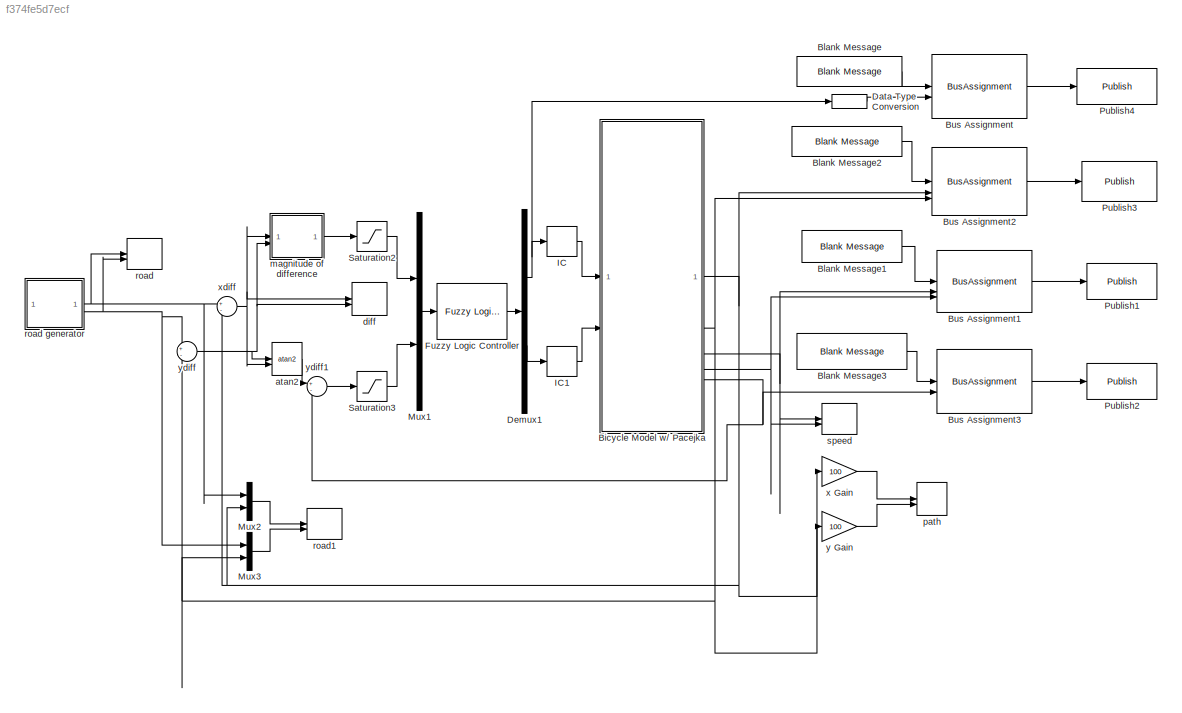
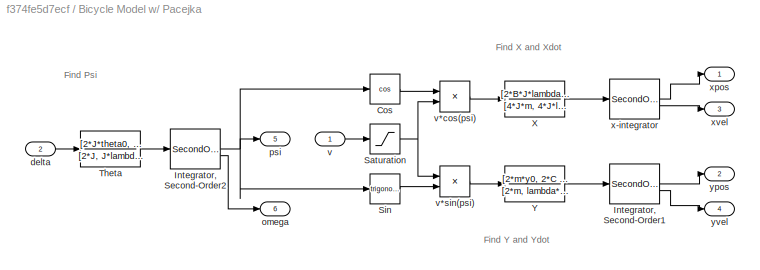
MODEL slx_f374fe5d7ecf
KIND model
CONFIG AbsTol = auto
CONFIG EnableMultiTasking = off
CONFIG FixedStep = auto
CONFIG MaxStep = auto
CONFIG MinStep = auto
CONFIG RelTol = 1e-3
CONFIG SampleTimeConstraint = Unconstrained
CONFIG SolverName = VariableStepAuto
CONFIG StartTime = 0.0
CONFIG StopTime = 10.0
WORKSPACE source: mxarray member
WORKSPACE B = 10
WORKSPACE C = 0.0002787
WORKSPACE Iz = 0
WORKSPACE J = 0.0186284035067
WORKSPACE L = 1
WORKSPACE X: Simulink.Parameter (value not decoded)
WORKSPACE c = 0.0002787
WORKSPACE g = 9.81
WORKSPACE lambda = 0.05
WORKSPACE lf = 0.5
WORKSPACE lr = 0.5
WORKSPACE m = 1000
WORKSPACE omega0 = 0
WORKSPACE r = 0.33
WORKSPACE theta = 1.57079632679
WORKSPACE theta0 = 1.57079632679
WORKSPACE v = 5
WORKSPACE vx0 = 5
WORKSPACE vy0 = 0
WORKSPACE x0 = 0
WORKSPACE y0 = 0
BLOCK [SubSystem] Bicycle Model w// Pacejka
BLOCK [Trigonometry] Bicycle Model w// Pacejka/Cos
  Operator = cos
BLOCK [SecondOrderIntegrator] Bicycle Model w// Pacejka/Integrator, Second-Order1
BLOCK [SecondOrderIntegrator] Bicycle Model w// Pacejka/Integrator, Second-Order2
BLOCK [Saturate] Bicycle Model w// Pacejka/Saturation
  LowerLimit = -30
  UpperLimit = 30
BLOCK [Trigonometry] Bicycle Model w// Pacejka/Sin
BLOCK [TransferFcn] Bicycle Model w// Pacejka/Theta
  Denominator = [2*J, J*lambda, 0, 0, 0]
  Numerator = [2*J*theta0, 2*J*omega0 + 2*C*L + J*lambda*theta0, J*lambda*omega0]
BLOCK [TransferFcn] Bicycle Model w// Pacejka/X
  ContinuousStateAttributes = 'X'
  Denominator = [4*J*m, 4*J*lambda*m, J*lambda^2*m, 0, 0, 0]
  Numerator = [2*B*J*lambda*omega0*r, J*lambda^2*m*vx0 + 4*B*C*L*r + 4*B*J*omega0*r + 2*B*J*lambda*r*theta0 - B*J*lambda^2*r*theta0, J*lambda^2*m*x0 + 4*B*J*r*theta0 + 4*J*lambda*m*vx0 - 4*B*J*lambda*r*theta0, 2*B*J*lambda + 4*J*m*vx0 - 4*B*J*r*theta0 + 4*J*lambda*m*x0, 4*B*J + 4*J*m*x0]
BLOCK [TransferFcn] Bicycle Model w// Pacejka/Y
  Denominator = [2*m, lambda*m, 0, 0, 0]
  Numerator = [2*m*y0, 2*C + 2*m*vy0 + lambda*m*y0, lambda*m*vy0]
BLOCK [Inport] Bicycle Model w// Pacejka/delta
  OutDataTypeStr = double
  Port = 2
BLOCK [Outport] Bicycle Model w// Pacejka/omega
  Port = 6
BLOCK [Outport] Bicycle Model w// Pacejka/psi
  Port = 5
BLOCK [Inport] Bicycle Model w// Pacejka/v
BLOCK [Product] Bicycle Model w// Pacejka/v*cos(psi)
BLOCK [Product] Bicycle Model w// Pacejka/v*sin(psi)
BLOCK [SecondOrderIntegrator] Bicycle Model w// Pacejka/x-integrator
BLOCK [Outport] Bicycle Model w// Pacejka/xpos
BLOCK [Outport] Bicycle Model w// Pacejka/xvel
  Port = 3
BLOCK [Outport] Bicycle Model w// Pacejka/ypos
  Port = 2
BLOCK [Outport] Bicycle Model w// Pacejka/yvel
  Port = 4
BLOCK [Reference] Blank Message  REF=ros2lib/Blank Message  (lib defined in slx_3c1549211f48)
  SourceBlock = ros2lib/Blank Message
  SourceType = ROS2 Blank Message
BLOCK [Reference] Blank Message1  REF=ros2lib/Blank Message  (lib defined in slx_3c1549211f48)
  SourceBlock = ros2lib/Blank Message
  SourceType = ROS2 Blank Message
BLOCK [Reference] Blank Message2  REF=ros2lib/Blank Message  (lib defined in slx_3c1549211f48)
  SourceBlock = ros2lib/Blank Message
  SourceType = ROS2 Blank Message
BLOCK [Reference] Blank Message3  REF=ros2lib/Blank Message  (lib defined in slx_3c1549211f48)
  SourceBlock = ros2lib/Blank Message
  SourceType = ROS2 Blank Message
BLOCK [BusAssignment] Bus Assignment
  AssignedSignals = linear.x
BLOCK [BusAssignment] Bus Assignment1
  AssignedSignals = linear.x,linear.y
BLOCK [BusAssignment] Bus Assignment2
  AssignedSignals = position.x,position.y
BLOCK [BusAssignment] Bus Assignment3
  AssignedSignals = angular.z
BLOCK [DataTypeConversion] Data Type Conversion
  RndMeth = Floor
  SaturateOnIntegerOverflow = off
BLOCK [Demux] Demux1
  Outputs = 2
BLOCK [Reference] Fuzzy Logic Controller  REF=fuzblock/Fuzzy Logic   (lib defined in mdl_858b3b3e7478)
Controller
  Commented = through
  SourceBlock = fuzblock/Fuzzy Logic \nController
  SourceType = Fuzzy Inference System
BLOCK [InitialCondition] IC
  Value = 0
BLOCK [InitialCondition] IC1
  Value = 0
BLOCK [Mux] Mux1
  DisplayOption = bar
  Inputs = 2
BLOCK [Mux] Mux2
  DisplayOption = bar
  Inputs = 2
BLOCK [Mux] Mux3
  DisplayOption = bar
  Inputs = 2
BLOCK [Reference] Publish1  REF=ros2lib/Publish  (lib defined in slx_3c1549211f48)
  SourceBlock = ros2lib/Publish
  SourceType = ROS2 Publish
BLOCK [Reference] Publish2  REF=ros2lib/Publish  (lib defined in slx_3c1549211f48)
  SourceBlock = ros2lib/Publish
  SourceType = ROS2 Publish
BLOCK [Reference] Publish3  REF=ros2lib/Publish  (lib defined in slx_3c1549211f48)
  SourceBlock = ros2lib/Publish
  SourceType = ROS2 Publish
BLOCK [Reference] Publish4  REF=ros2lib/Publish  (lib defined in slx_3c1549211f48)
  SourceBlock = ros2lib/Publish
  SourceType = ROS2 Publish
BLOCK [Saturate] Saturation2
  LinearizeAsGain = off
  LowerLimit = 0
  UpperLimit = 100
BLOCK [Saturate] Saturation3
  LowerLimit = -1
  UpperLimit = 1
BLOCK [Trigonometry] atan2
  Operator = atan2
BLOCK [Record] diff
  CompatibilityTag = XY
  FileSettingsInternal = {"entries":[{"content":{"excelSettings":{"content":{},"type":"Streamout.ExcelSettings"}},"type":"Streamout.FileSettingStorage","uuid":"2d8157a5-6065-47c2-be26-9590e29e7524"}],"packageUris":["http://schema.mathworks.com/mf0/streamout_blocks/R2020a"],"version":"1.0"}
  Layout = [1 1]
  SignalsInternal = {"entries":[{"content":{"signals":[{"content":{"blockPath":["untitled1/diff"],"dimensions":[1],"domain":"untitled1/diff","lineColor":"#edb120","plots":[1],"port":1,"sid":[""],"signalID":67,"signalName":"xdiff"},"type":"RecordBlkView.Signal","uuid":"e2b073bf-be37-4965-8b7f-5b7a7ad847ab"},{"content":{"blockPath":["untitled1/diff"],"dimensions":[1],"domain":"untitled1/diff","lineColor":"#7e2f8e","plo...<+317ch>
  VisualizationBindings = {"xyplotplugin":{"info":[{"series":[{"bindingParametersList":[{"parameter":"X-Axis","signalID":67,"signalName":"xdiff"},{"parameter":"Y-Axis","signalID":71,"signalName":"ydiff"}],"seriesID":28432}],"subplotID":1}]}}
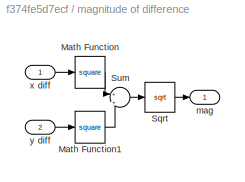
BLOCK [SubSystem] magnitude of difference
BLOCK [Math] magnitude of difference/Math Function
  Operator = square
BLOCK [Math] magnitude of difference/Math Function1
  Operator = square
BLOCK [Sqrt] magnitude of difference/Sqrt
BLOCK [Sum] magnitude of difference/Sum
  Inputs = +|+
BLOCK [Outport] magnitude of difference/mag
BLOCK [Inport] magnitude of difference/x diff
BLOCK [Inport] magnitude of difference/y diff
  Port = 2
BLOCK [Record] path
  CompatibilityTag = XY
  FileSettingsInternal = {"entries":[{"content":{"excelSettings":{"content":{},"type":"Streamout.ExcelSettings"}},"type":"Streamout.FileSettingStorage","uuid":"b3a00028-b86e-497e-b1a4-bed6d6cfc16e"}],"packageUris":["http://schema.mathworks.com/mf0/streamout_blocks/R2020a"],"version":"1.0"}
  Layout = [1 1]
  SignalsInternal = {"entries":[{"content":{"signals":[{"content":{"blockPath":["untitled1/path"],"dimensions":[1],"domain":"untitled1/path","lineColor":"#77ac30","plots":[1],"port":1,"sid":[""],"signalID":75,"signalName":"x Gain"},"type":"RecordBlkView.Signal","uuid":"9f6e2ba6-95d3-46aa-ac2c-a6912c2eccfd"},{"content":{"blockPath":["untitled1/path"],"dimensions":[1],"domain":"untitled1/path","lineColor":"#4dbeee","pl...<+319ch>
  VisualizationBindings = {"xyplotplugin":{"info":[{"series":[{"bindingParametersList":[{"parameter":"X-Axis","signalID":75,"signalName":"x Gain"},{"parameter":"Y-Axis","signalID":79,"signalName":"y Gain"}],"seriesID":61353}],"subplotID":1}]}}
BLOCK [Record] road
  CompatibilityTag = XY
  FileSettingsInternal = {"entries":[{"content":{"excelSettings":{"content":{},"type":"Streamout.ExcelSettings"}},"type":"Streamout.FileSettingStorage","uuid":"d07d3496-90e7-4e0f-9b88-ab9051feddc0"}],"packageUris":["http://schema.mathworks.com/mf0/streamout_blocks/R2020a"],"version":"1.0"}
  Layout = [1 1]
  SignalsInternal = {"entries":[{"content":{"signals":[{"content":{"blockPath":["untitled1/road"],"dimensions":[1],"domain":"untitled1/road","lineColor":"#a2142f","plots":[1],"port":1,"sid":[""],"signalID":83,"signalName":"road generator:1"},"type":"RecordBlkView.Signal","uuid":"ed4548c9-48e5-4197-b732-459db7075a78"},{"content":{"blockPath":["untitled1/road"],"dimensions":[1],"domain":"untitled1/road","lineColor":"#1...<+339ch>
  VisualizationBindings = {"xyplotplugin":{"info":[{"series":[{"bindingParametersList":[{"parameter":"X-Axis","signalID":83,"signalName":"road generator:1"},{"parameter":"Y-Axis","signalID":87,"signalName":"road generator:2"}],"seriesID":49059}],"subplotID":1}]}}
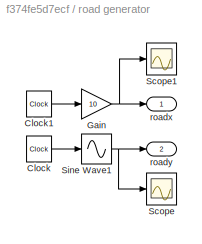
BLOCK [SubSystem] road generator
BLOCK [Clock] road generator/Clock
  Decimation = 1
BLOCK [Clock] road generator/Clock1
  Decimation = 1
BLOCK [Gain] road generator/Gain
  Gain = 10
BLOCK [Scope] road generator/Scope
  Floating = off
  NumInputPorts = 1
  ScopeSpecificationString = Simulink.scopes.TimeScopeBlockCfg('CurrentConfiguration', extmgr.ConfigurationSet(extmgr.Configuration('Core','General UI',true),extmgr.Configuration('Core','Source UI',true),extmgr.Configuration('Sources','WiredSimulink',true,'DataLoggingVariableName','ScopeData1'),extmgr.Configuration('Visuals','Time Domain',true,'SerializedDisplays',{struct('MinYLimReal','-12.49997','MaxYLimReal','12.49999','YL...<+1464ch>
BLOCK [Scope] road generator/Scope1
  Floating = off
  NumInputPorts = 1
  ScopeSpecificationString = Simulink.scopes.TimeScopeBlockCfg('CurrentConfiguration', extmgr.ConfigurationSet(extmgr.Configuration('Core','General UI',true),extmgr.Configuration('Core','Source UI',true),extmgr.Configuration('Sources','WiredSimulink',true,'DataLoggingVariableName','ScopeData2'),extmgr.Configuration('Visuals','Time Domain',true,'SerializedDisplays',{struct('MinYLimReal','-125.00000','MaxYLimReal','1125.00000',...<+1445ch>
BLOCK [Sin] road generator/Sine Wave1
  Amplitude = 10
  Frequency = 0.05
  Phase = 1
  SampleTime = 0
  TimeSource = Use external signal
BLOCK [Outport] road generator/roadx
BLOCK [Outport] road generator/roady
  Port = 2
BLOCK [Record] road1
  CompatibilityTag = XY
  FileSettingsInternal = {"entries":[{"content":{"excelSettings":{"content":{},"type":"Streamout.ExcelSettings"}},"type":"Streamout.FileSettingStorage","uuid":"fd0e69a7-7e15-41e4-a11d-e32ac81ac047"}],"packageUris":["http://schema.mathworks.com/mf0/streamout_blocks/R2020a"],"version":"1.0"}
  Layout = [1 1]
  SignalsInternal = {"entries":[{"content":{"signals":[{"content":{"blockPath":["untitled1/road1"],"dimensions":[2],"domain":"untitled1/road1","hasChildren":true,"lineColor":"#ff6929","port":1,"sid":[""],"signalID":91,"signalName":"Mux2"},"type":"RecordBlkView.Signal","uuid":"c72198df-2d36-4ed1-9dae-991267c6d15d"},{"content":{"blockPath":["untitled1/road1"],"channel":[1],"dimensions":[2],"domain":"untitled1/road1","l...<+1463ch>
  VisualizationBindings = {"xyplotplugin":{"info":[{"series":[{"bindingParametersList":[{"parameter":"X-Axis","signalID":92,"signalName":"Mux2(1)"},{"parameter":"Y-Axis","signalID":112,"signalName":"Mux3(2)"}],"seriesID":35929},{"bindingParametersList":[{"parameter":"X-Axis","signalID":111,"signalName":"Mux2(2)"},{"parameter":"Y-Axis","signalID":97,"signalName":"Mux3(1)"}],"seriesID":47239}],"subplotID":1}]}}
BLOCK [Record] speed
  CompatibilityTag = XY
  FileSettingsInternal = {"entries":[{"content":{"excelSettings":{"content":{},"type":"Streamout.ExcelSettings"}},"type":"Streamout.FileSettingStorage","uuid":"9d907cc6-5e91-4946-8edb-95cf9364cb66"}],"packageUris":["http://schema.mathworks.com/mf0/streamout_blocks/R2020a"],"version":"1.0"}
  Layout = [1 1]
  SignalsInternal = {"entries":[{"content":{"signals":[{"content":{"blockPath":["untitled1/speed"],"dimensions":[1],"domain":"untitled1/speed","lineColor":"#ff6929","plots":[1],"port":1,"sid":[""],"signalID":101,"signalName":"Bicycle Model w/ Pacejka:3"},"type":"RecordBlkView.Signal","uuid":"68dabdb4-8ae3-483f-90f3-2f23e7eab510"},{"content":{"blockPath":["untitled1/speed"],"dimensions":[1],"domain":"untitled1/speed",...<+365ch>
  VisualizationBindings = {"xyplotplugin":{"info":[{"series":[{"bindingParametersList":[{"parameter":"X-Axis","signalID":101,"signalName":"Bicycle Model w\/ Pacejka:3"},{"parameter":"Y-Axis","signalID":105,"signalName":"Bicycle Model w\/ Pacejka:4"}],"seriesID":8705}],"subplotID":1}]}}
BLOCK [Gain] x Gain
  Gain = 100
BLOCK [Sum] xdiff
  Inputs = +-
BLOCK [Gain] y Gain
  Gain = 100
BLOCK [Sum] ydiff
  Inputs = +-
BLOCK [Sum] ydiff1
  Inputs = +-
ANNOTATION Bicycle Model w// Pacejka: Find Psi
ANNOTATION Bicycle Model w// Pacejka: Find X and Xdot
ANNOTATION Bicycle Model w// Pacejka: Find Y and Ydot
LINE Bicycle Model w// Pacejka/Cos:1 -> Bicycle Model w// Pacejka/v*cos(psi):1
LINE Bicycle Model w// Pacejka/Integrator, Second-Order1:1 -> Bicycle Model w// Pacejka/ypos:1
LINE Bicycle Model w// Pacejka/Integrator, Second-Order1:2 -> Bicycle Model w// Pacejka/yvel:1
NET Bicycle Model w// Pacejka/Integrator, Second-Order2:1 -> Bicycle Model w// Pacejka/Cos:1, Bicycle Model w// Pacejka/Sin:1, Bicycle Model w// Pacejka/psi:1
LINE Bicycle Model w// Pacejka/Integrator, Second-Order2:2 -> Bicycle Model w// Pacejka/omega:1
NET Bicycle Model w// Pacejka/Saturation:1 -> Bicycle Model w// Pacejka/v*cos(psi):2, Bicycle Model w// Pacejka/v*sin(psi):1
LINE Bicycle Model w// Pacejka/Sin:1 -> Bicycle Model w// Pacejka/v*sin(psi):2
LINE Bicycle Model w// Pacejka/Theta:1 -> Bicycle Model w// Pacejka/Integrator, Second-Order2:1
LINE Bicycle Model w// Pacejka/X:1 -> Bicycle Model w// Pacejka/x-integrator:1
LINE Bicycle Model w// Pacejka/Y:1 -> Bicycle Model w// Pacejka/Integrator, Second-Order1:1
LINE Bicycle Model w// Pacejka/delta:1 -> Bicycle Model w// Pacejka/Theta:1
LINE Bicycle Model w// Pacejka/v*cos(psi):1 -> Bicycle Model w// Pacejka/X:1
LINE Bicycle Model w// Pacejka/v*sin(psi):1 -> Bicycle Model w// Pacejka/Y:1
LINE Bicycle Model w// Pacejka/v:1 -> Bicycle Model w// Pacejka/Saturation:1
LINE Bicycle Model w// Pacejka/x-integrator:1 -> Bicycle Model w// Pacejka/xpos:1
LINE Bicycle Model w// Pacejka/x-integrator:2 -> Bicycle Model w// Pacejka/xvel:1
NET Bicycle Model w// Pacejka:1 -> Bus Assignment2:2, Mux2:2, x Gain:1, xdiff:2
NET Bicycle Model w// Pacejka:2 -> Bus Assignment2:3, Mux3:2, y Gain:1, ydiff:2
NET Bicycle Model w// Pacejka:3 -> Bus Assignment1:2, speed:1
NET Bicycle Model w// Pacejka:4 -> Bus Assignment1:3, speed:2
NET Bicycle Model w// Pacejka:5 -> Bus Assignment3:2, ydiff1:2
LINE Blank Message1:1 -> Bus Assignment1:1
LINE Blank Message2:1 -> Bus Assignment2:1
LINE Blank Message3:1 -> Bus Assignment3:1
LINE Blank Message:1 -> Bus Assignment:1
LINE Bus Assignment1:1 -> Publish1:1
LINE Bus Assignment2:1 -> Publish3:1
LINE Bus Assignment3:1 -> Publish2:1
LINE Bus Assignment:1 -> Publish4:1
LINE Data Type Conversion:1 -> Bus Assignment:2
NET Demux1:1 -> Data Type Conversion:1, IC:1
LINE Demux1:2 -> IC1:1
LINE Fuzzy Logic Controller:1 -> Demux1:1
LINE IC1:1 -> Bicycle Model w// Pacejka:2
LINE IC:1 -> Bicycle Model w// Pacejka:1
LINE Mux1:1 -> Fuzzy Logic Controller:1
LINE Mux2:1 -> road1:1
LINE Mux3:1 -> road1:2
LINE Saturation2:1 -> Mux1:1
LINE Saturation3:1 -> Mux1:2
LINE atan2:1 -> ydiff1:1
LINE magnitude of difference/Math Function1:1 -> magnitude of difference/Sum:2
LINE magnitude of difference/Math Function:1 -> magnitude of difference/Sum:1
LINE magnitude of difference/Sqrt:1 -> magnitude of difference/mag:1
LINE magnitude of difference/Sum:1 -> magnitude of difference/Sqrt:1
LINE magnitude of difference/x diff:1 -> magnitude of difference/Math Function:1
LINE magnitude of difference/y diff:1 -> magnitude of difference/Math Function1:1
LINE magnitude of difference:1 -> Saturation2:1
LINE road generator/Clock1:1 -> road generator/Gain:1
LINE road generator/Clock:1 -> road generator/Sine Wave1:1
NET road generator/Gain:1 -> road generator/Scope1:1, road generator/roadx:1
NET road generator/Sine Wave1:1 -> road generator/Scope:1, road generator/roady:1
NET road generator:1 -> Mux2:1, road:1, xdiff:1
NET road generator:2 -> Mux3:1, road:2, ydiff:1
LINE x Gain:1 -> path:1
NET xdiff:1 -> atan2:2, diff:1, magnitude of difference:1
LINE y Gain:1 -> path:2
LINE ydiff1:1 -> Saturation3:1
NET ydiff:1 -> atan2:1, diff:2, magnitude of difference:2
note: NET lines group one-source signal fan-out (src -> all destinations, sorted); 1:1 wires keep LINE
